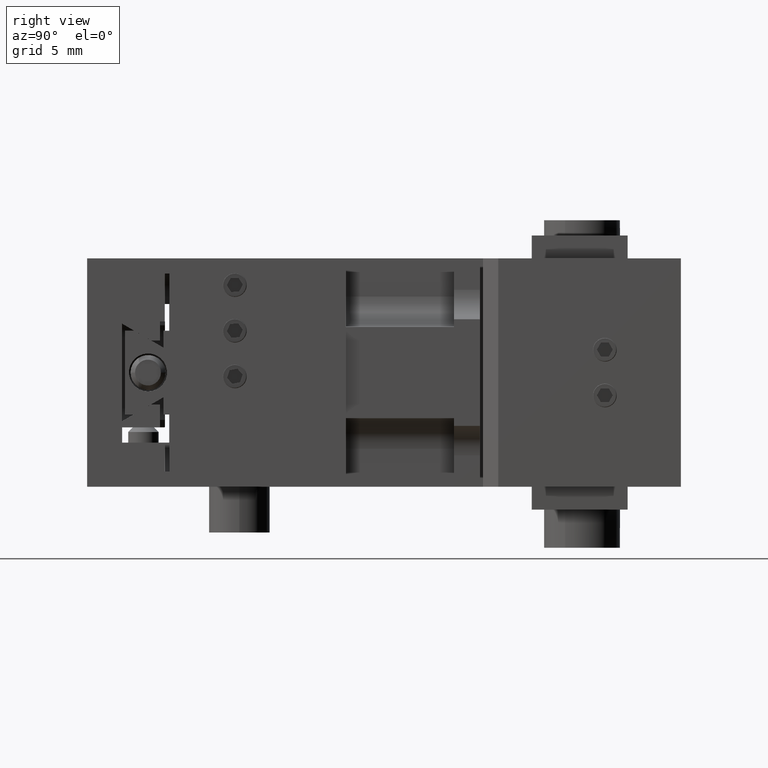
[diagram: clean part render]
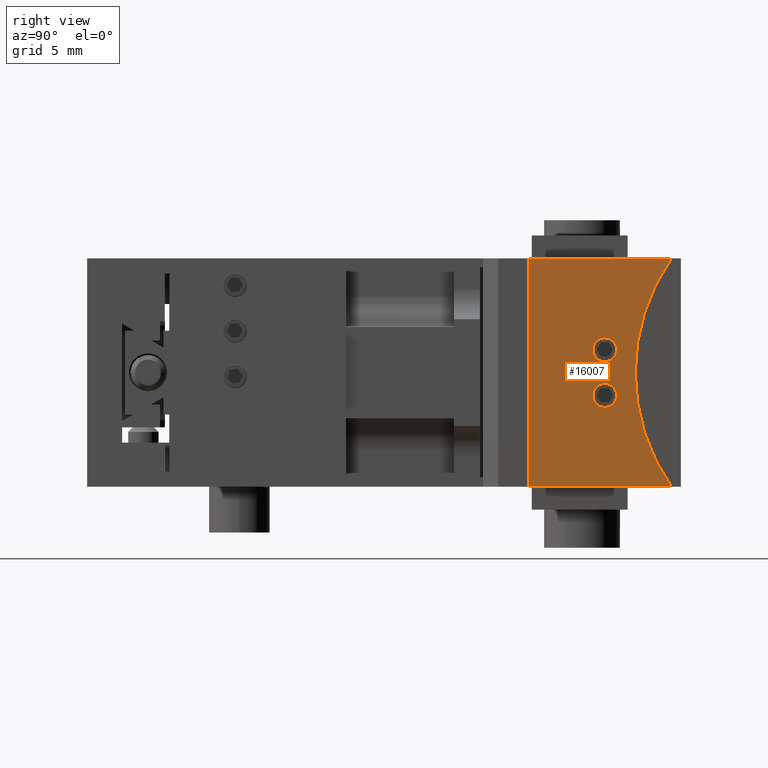
[diagram: same view with one face highlighted and labeled with its STEP entity id]
A machine part, right view. The second image highlights one B-rep face of the part: STEP entity #16007.
In plain terms, the highlighted planar face has unit normal (1, -0, -0).
Its self-contained STEP definition (entity closure, byte-faithful):
#134 = VECTOR ( 'NONE', #11127, 1000.000000000000000 ) ;
#216 = CIRCLE ( 'NONE', #24899, 13.00000000000000000 ) ;
#337 = CARTESIAN_POINT ( 'NONE',  ( 0.000000000000000000, -8.500000000000000000, 0.000000000000000000 ) ) ;
#456 = DIRECTION ( 'NONE',  ( 0.000000000000000000, 0.000000000000000000, -1.000000000000000000 ) ) ;
#812 = EDGE_CURVE ( 'NONE', #19893, #4009, #216, .T. ) ;
#827 = VERTEX_POINT ( 'NONE', #10314 ) ;
#1487 = CARTESIAN_POINT ( 'NONE',  ( -1.500000000000000000, -8.500000000000000000, -15.00000000000000000 ) ) ;
#2502 = AXIS2_PLACEMENT_3D ( 'NONE', #19811, #17715, #19686 ) ;
#2574 = EDGE_CURVE ( 'NONE', #4009, #9118, #20851, .T. ) ;
#2661 = DIRECTION ( 'NONE',  ( 0.000000000000000000, 0.000000000000000000, -1.000000000000000000 ) ) ;
#2923 = EDGE_CURVE ( 'NONE', #827, #14728, #3575, .T. ) ;
#3149 = CARTESIAN_POINT ( 'NONE',  ( 7.500000000000000000, -8.500000000000000000, -20.00000000000000000 ) ) ;
#3312 = CARTESIAN_POINT ( 'NONE',  ( 7.500000000000000000, -8.500000000000000000, -10.61838029079765988 ) ) ;
#3575 = CIRCLE ( 'NONE', #8999, 0.7834999999999998632 ) ;
#3615 = ORIENTED_EDGE ( 'NONE', *, *, #15650, .F. ) ;
#3761 = CIRCLE ( 'NONE', #18392, 0.7834999999999999742 ) ;
#4009 = VERTEX_POINT ( 'NONE', #3312 ) ;
#4071 = ORIENTED_EDGE ( 'NONE', *, *, #812, .F. ) ;
#4102 = DIRECTION ( 'NONE',  ( 0.000000000000000000, 1.000000000000000000, 0.000000000000000000 ) ) ;
#4629 = AXIS2_PLACEMENT_3D ( 'NONE', #337, #8328, #456 ) ;
#5036 = DIRECTION ( 'NONE',  ( 1.000000000000000000, 0.000000000000000000, 0.000000000000000000 ) ) ;
#5347 = CARTESIAN_POINT ( 'NONE',  ( -1.500000000000000000, -8.500000000000000000, -15.00000000000000000 ) ) ;
#6079 = CIRCLE ( 'NONE', #22406, 0.7834999999999998632 ) ;
#6183 = CARTESIAN_POINT ( 'NONE',  ( -7.500000000000000000, -8.500000000000000000, -20.00000000000000000 ) ) ;
#6319 = DIRECTION ( 'NONE',  ( 0.000000000000000000, 1.000000000000000000, 0.000000000000000000 ) ) ;
#8008 = CARTESIAN_POINT ( 'NONE',  ( 1.500000000000000000, -8.500000000000000000, -15.00000000000000000 ) ) ;
#8100 = DIRECTION ( 'NONE',  ( 0.000000000000000000, -1.000000000000000000, 0.000000000000000000 ) ) ;
#8328 = DIRECTION ( 'NONE',  ( 0.000000000000000000, -1.000000000000000000, 0.000000000000000000 ) ) ;
#8580 = LINE ( 'NONE', #14719, #8764 ) ;
#8604 = AXIS2_PLACEMENT_3D ( 'NONE', #5347, #15283, #21179 ) ;
#8764 = VECTOR ( 'NONE', #16801, 1000.000000000000000 ) ;
#8999 = AXIS2_PLACEMENT_3D ( 'NONE', #8008, #4102, #14017 ) ;
#9118 = VERTEX_POINT ( 'NONE', #25350 ) ;
#9421 = ORIENTED_EDGE ( 'NONE', *, *, #11815, .T. ) ;
#10314 = CARTESIAN_POINT ( 'NONE',  ( 0.7165000000000000258, -8.500000000000000000, -15.00000000000000000 ) ) ;
#10611 = CARTESIAN_POINT ( 'NONE',  ( -0.7165000000000000258, -8.500000000000000000, -15.00000000000000000 ) ) ;
#11127 = DIRECTION ( 'NONE',  ( -1.000000000000000000, 0.000000000000000000, 0.000000000000000000 ) ) ;
#11815 = EDGE_CURVE ( 'NONE', #14728, #827, #6079, .T. ) ;
#11823 = PLANE ( 'NONE',  #2502 ) ;
#12517 = ORIENTED_EDGE ( 'NONE', *, *, #21414, .F. ) ;
#12592 = CARTESIAN_POINT ( 'NONE',  ( 7.500000000000000000, -8.500000000000000000, -10.61838029079765988 ) ) ;
#12761 = EDGE_LOOP ( 'NONE', ( #15167, #9421 ) ) ;
#12975 = CIRCLE ( 'NONE', #4629, 13.00000000000000000 ) ;
#13654 = FACE_BOUND ( 'NONE', #12761, .T. ) ;
#13975 = DIRECTION ( 'NONE',  ( 0.000000000000000000, 0.000000000000000000, -1.000000000000000000 ) ) ;
#14017 = DIRECTION ( 'NONE',  ( 1.000000000000000000, 0.000000000000000000, 0.000000000000000000 ) ) ;
#14719 = CARTESIAN_POINT ( 'NONE',  ( -7.500000000000000000, -8.500000000000000000, -20.00000000000000000 ) ) ;
#14728 = VERTEX_POINT ( 'NONE', #16798 ) ;
#14750 = EDGE_LOOP ( 'NONE', ( #25010, #21273 ) ) ;
#15057 = LINE ( 'NONE', #3149, #134 ) ;
#15061 = CARTESIAN_POINT ( 'NONE',  ( -7.500000000000000000, -8.500000000000000000, -10.61838029079765988 ) ) ;
#15167 = ORIENTED_EDGE ( 'NONE', *, *, #2923, .T. ) ;
#15283 = DIRECTION ( 'NONE',  ( 0.000000000000000000, 1.000000000000000000, 0.000000000000000000 ) ) ;
#15650 = EDGE_CURVE ( 'NONE', #21138, #25034, #8580, .T. ) ;
#15884 = FACE_BOUND ( 'NONE', #14750, .T. ) ;
#15945 = EDGE_CURVE ( 'NONE', #21278, #22253, #3761, .T. ) ;
#16007 = ADVANCED_FACE ( 'NONE', ( #25845, #13654, #15884 ), #11823, .T. ) ;
#16798 = CARTESIAN_POINT ( 'NONE',  ( 2.283500000000000085, -8.500000000000000000, -15.00000000000000000 ) ) ;
#16801 = DIRECTION ( 'NONE',  ( 0.000000000000000000, 0.000000000000000000, 1.000000000000000000 ) ) ;
#17038 = EDGE_CURVE ( 'NONE', #25034, #19893, #12975, .T. ) ;
#17715 = DIRECTION ( 'NONE',  ( 0.000000000000000000, -1.000000000000000000, 0.000000000000000000 ) ) ;
#17764 = VECTOR ( 'NONE', #2661, 1000.000000000000000 ) ;
#18200 = CARTESIAN_POINT ( 'NONE',  ( 0.000000000000000000, -8.500000000000000000, -13.00000000000000000 ) ) ;
#18392 = AXIS2_PLACEMENT_3D ( 'NONE', #1487, #23222, #5036 ) ;
#19686 = DIRECTION ( 'NONE',  ( 0.000000000000000000, 0.000000000000000000, -1.000000000000000000 ) ) ;
#19811 = CARTESIAN_POINT ( 'NONE',  ( 0.000000000000000000, -8.500000000000000000, -17.25000000000000000 ) ) ;
#19816 = ORIENTED_EDGE ( 'NONE', *, *, #17038, .F. ) ;
#19892 = CIRCLE ( 'NONE', #8604, 0.7834999999999999742 ) ;
#19893 = VERTEX_POINT ( 'NONE', #18200 ) ;
#20851 = LINE ( 'NONE', #12592, #17764 ) ;
#21138 = VERTEX_POINT ( 'NONE', #6183 ) ;
#21179 = DIRECTION ( 'NONE',  ( 1.000000000000000000, 0.000000000000000000, 0.000000000000000000 ) ) ;
#21273 = ORIENTED_EDGE ( 'NONE', *, *, #15945, .T. ) ;
#21278 = VERTEX_POINT ( 'NONE', #10611 ) ;
#21414 = EDGE_CURVE ( 'NONE', #9118, #21138, #15057, .T. ) ;
#21555 = EDGE_LOOP ( 'NONE', ( #24763, #4071, #19816, #3615, #12517 ) ) ;
#22182 = DIRECTION ( 'NONE',  ( 1.000000000000000000, 0.000000000000000000, 0.000000000000000000 ) ) ;
#22253 = VERTEX_POINT ( 'NONE', #25831 ) ;
#22406 = AXIS2_PLACEMENT_3D ( 'NONE', #24271, #6319, #22182 ) ;
#23222 = DIRECTION ( 'NONE',  ( 0.000000000000000000, 1.000000000000000000, 0.000000000000000000 ) ) ;
#24210 = CARTESIAN_POINT ( 'NONE',  ( 0.000000000000000000, -8.500000000000000000, 0.000000000000000000 ) ) ;
#24271 = CARTESIAN_POINT ( 'NONE',  ( 1.500000000000000000, -8.500000000000000000, -15.00000000000000000 ) ) ;
#24352 = EDGE_CURVE ( 'NONE', #22253, #21278, #19892, .T. ) ;
#24763 = ORIENTED_EDGE ( 'NONE', *, *, #2574, .F. ) ;
#24899 = AXIS2_PLACEMENT_3D ( 'NONE', #24210, #8100, #13975 ) ;
#25010 = ORIENTED_EDGE ( 'NONE', *, *, #24352, .T. ) ;
#25034 = VERTEX_POINT ( 'NONE', #15061 ) ;
#25350 = CARTESIAN_POINT ( 'NONE',  ( 7.500000000000000000, -8.500000000000000000, -20.00000000000000000 ) ) ;
#25831 = CARTESIAN_POINT ( 'NONE',  ( -2.283500000000000085, -8.500000000000000000, -15.00000000000000000 ) ) ;
#25845 = FACE_OUTER_BOUND ( 'NONE', #21555, .T. ) ;